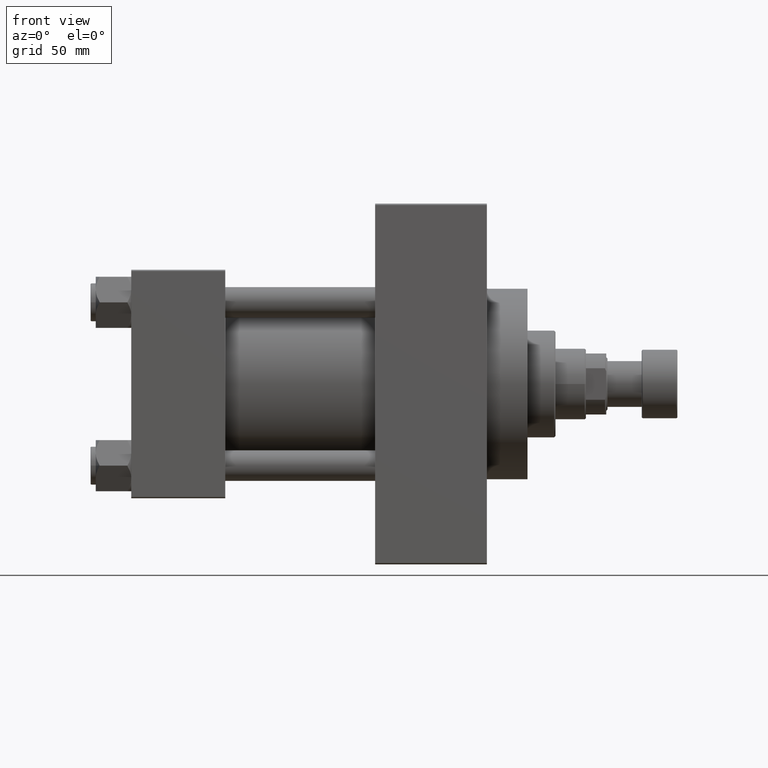
[diagram: clean part render]
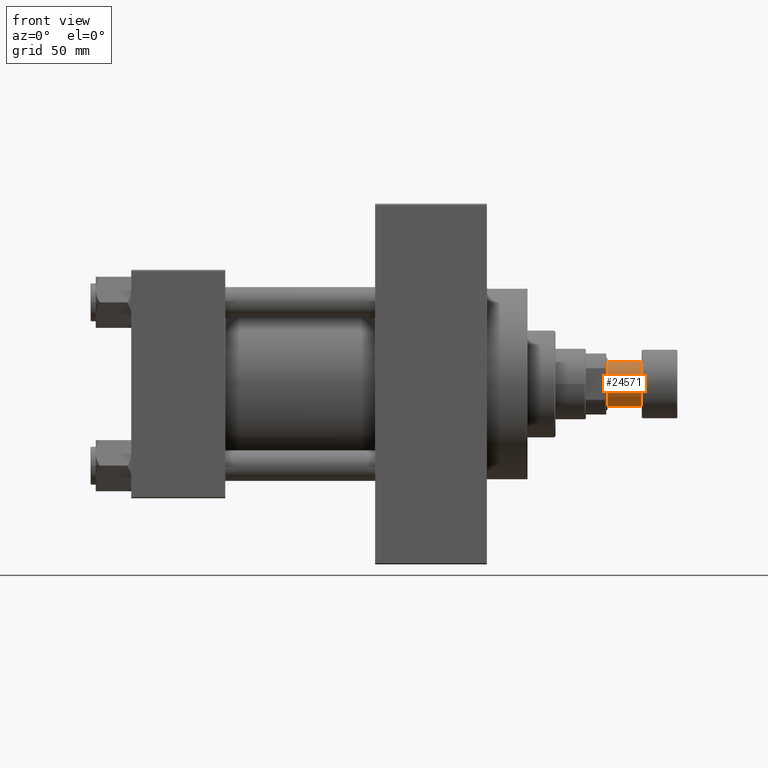
[diagram: same view with one face highlighted and labeled with its STEP entity id]
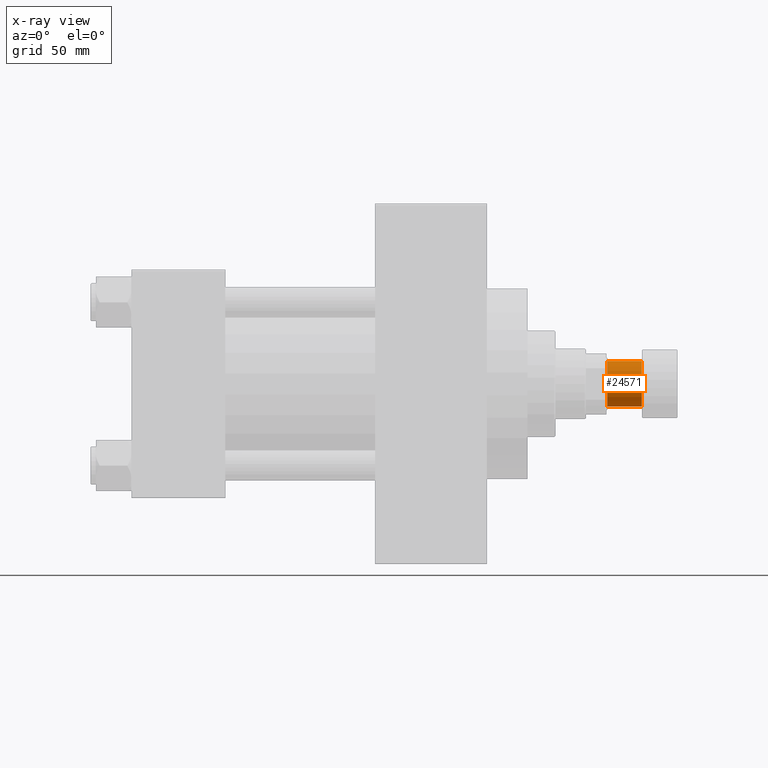
[diagram: x-ray of the same camera — body ghosted, the highlighted face saturated]
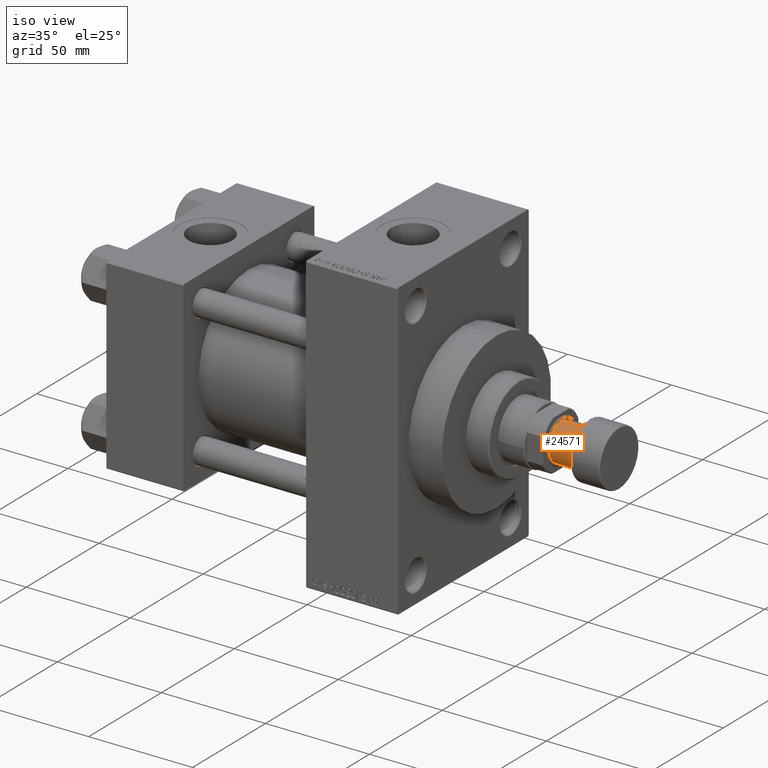
[diagram: same view with one face highlighted and labeled with its STEP entity id]
A machine part, front view. The second image highlights one B-rep face of the part: STEP entity #24571.
The next image is the same camera in x-ray: the body ghosted, the highlighted face saturated — about 0% of this face is hidden behind the body in this view.
A second angle (iso view) of the same face is appended — the face is thin or edge-on in the first view.
In plain terms, the highlighted cylindrical surface (edge-blend (fillet) strip) has radius 9 mm, axis along (1, 0, 0).
Its self-contained STEP definition (entity closure, byte-faithful):
#1093 = CARTESIAN_POINT ( 'NONE',  ( -9.000000000000000000, 1.102182119232617714E-15, -27.50000000000000000 ) ) ;
#3089 = EDGE_CURVE ( 'NONE', #46884, #47274, #12939, .T. ) ;
#4412 = DIRECTION ( 'NONE',  ( 0.000000000000000000, 0.000000000000000000, -1.000000000000000000 ) ) ;
#5596 = CARTESIAN_POINT ( 'NONE',  ( 0.000000000000000000, 0.000000000000000000, -27.50000000000000000 ) ) ;
#6485 = FACE_OUTER_BOUND ( 'NONE', #11301, .T. ) ;
#6665 = ORIENTED_EDGE ( 'NONE', *, *, #45000, .T. ) ;
#8686 = LINE ( 'NONE', #34359, #16217 ) ;
#10269 = VERTEX_POINT ( 'NONE', #23091 ) ;
#11301 = EDGE_LOOP ( 'NONE', ( #44713, #23102, #16111, #6665 ) ) ;
#12939 = CIRCLE ( 'NONE', #27376, 9.000000000000000000 ) ;
#13755 = DIRECTION ( 'NONE',  ( -0.000000000000000000, -0.000000000000000000, 1.000000000000000000 ) ) ;
#14252 = CYLINDRICAL_SURFACE ( 'NONE', #26613, 9.000000000000000000 ) ;
#16111 = ORIENTED_EDGE ( 'NONE', *, *, #26743, .T. ) ;
#16217 = VECTOR ( 'NONE', #34602, 1000.000000000000000 ) ;
#16421 = DIRECTION ( 'NONE',  ( -0.000000000000000000, -0.000000000000000000, 1.000000000000000000 ) ) ;
#17739 = CARTESIAN_POINT ( 'NONE',  ( -9.000000000000000000, 1.102182119232617714E-15, -27.50000000000000000 ) ) ;
#19491 = VECTOR ( 'NONE', #16421, 1000.000000000000000 ) ;
#20477 = CARTESIAN_POINT ( 'NONE',  ( 0.000000000000000000, 0.000000000000000000, -14.00000000000000000 ) ) ;
#23091 = CARTESIAN_POINT ( 'NONE',  ( -9.000000000000000000, 1.102182119232617714E-15, -14.00000000000000000 ) ) ;
#23102 = ORIENTED_EDGE ( 'NONE', *, *, #3089, .F. ) ;
#23764 = DIRECTION ( 'NONE',  ( -1.000000000000000000, 0.000000000000000000, 0.000000000000000000 ) ) ;
#24138 = CARTESIAN_POINT ( 'NONE',  ( 9.000000000000000000, 0.000000000000000000, -14.00000000000000000 ) ) ;
#24571 = ADVANCED_FACE ( 'NONE', ( #6485 ), #14252, .T. ) ;
#24949 = DIRECTION ( 'NONE',  ( -1.000000000000000000, 0.000000000000000000, 0.000000000000000000 ) ) ;
#26613 = AXIS2_PLACEMENT_3D ( 'NONE', #29623, #13755, #36932 ) ;
#26743 = EDGE_CURVE ( 'NONE', #46884, #27830, #8686, .T. ) ;
#27376 = AXIS2_PLACEMENT_3D ( 'NONE', #5596, #32996, #24949 ) ;
#27830 = VERTEX_POINT ( 'NONE', #24138 ) ;
#29623 = CARTESIAN_POINT ( 'NONE',  ( 0.000000000000000000, 0.000000000000000000, -27.50000000000000000 ) ) ;
#31092 = CIRCLE ( 'NONE', #40722, 9.000000000000000000 ) ;
#31103 = EDGE_CURVE ( 'NONE', #47274, #10269, #43114, .T. ) ;
#32925 = CARTESIAN_POINT ( 'NONE',  ( 9.000000000000000000, 0.000000000000000000, -27.50000000000000000 ) ) ;
#32996 = DIRECTION ( 'NONE',  ( 0.000000000000000000, 0.000000000000000000, -1.000000000000000000 ) ) ;
#34359 = CARTESIAN_POINT ( 'NONE',  ( 9.000000000000000000, 0.000000000000000000, -27.50000000000000000 ) ) ;
#34602 = DIRECTION ( 'NONE',  ( -0.000000000000000000, -0.000000000000000000, 1.000000000000000000 ) ) ;
#36932 = DIRECTION ( 'NONE',  ( 1.000000000000000000, 0.000000000000000000, 0.000000000000000000 ) ) ;
#40722 = AXIS2_PLACEMENT_3D ( 'NONE', #20477, #4412, #23764 ) ;
#43114 = LINE ( 'NONE', #1093, #19491 ) ;
#44713 = ORIENTED_EDGE ( 'NONE', *, *, #31103, .F. ) ;
#45000 = EDGE_CURVE ( 'NONE', #27830, #10269, #31092, .T. ) ;
#46884 = VERTEX_POINT ( 'NONE', #32925 ) ;
#47274 = VERTEX_POINT ( 'NONE', #17739 ) ;